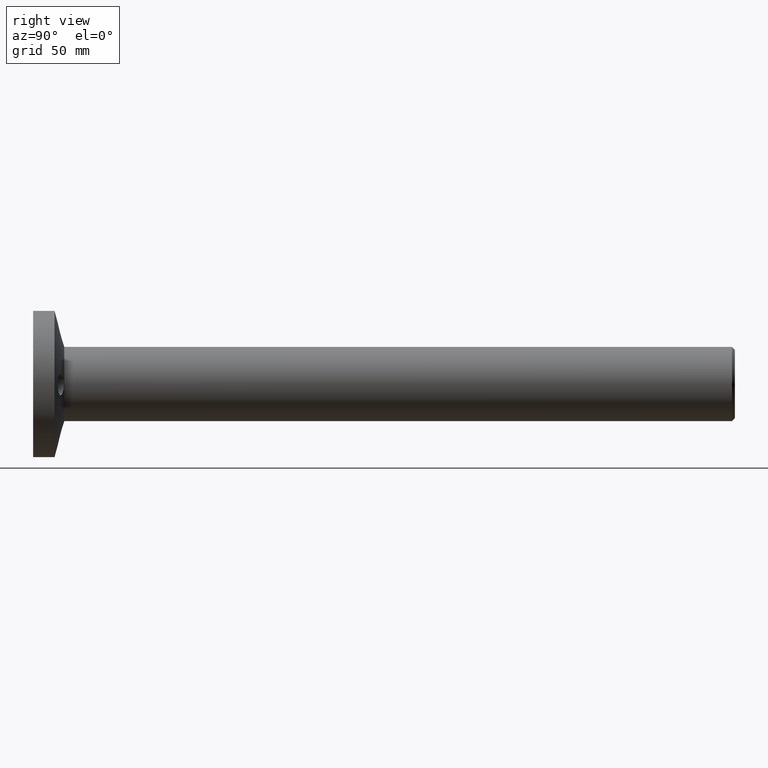
[diagram: clean part render]
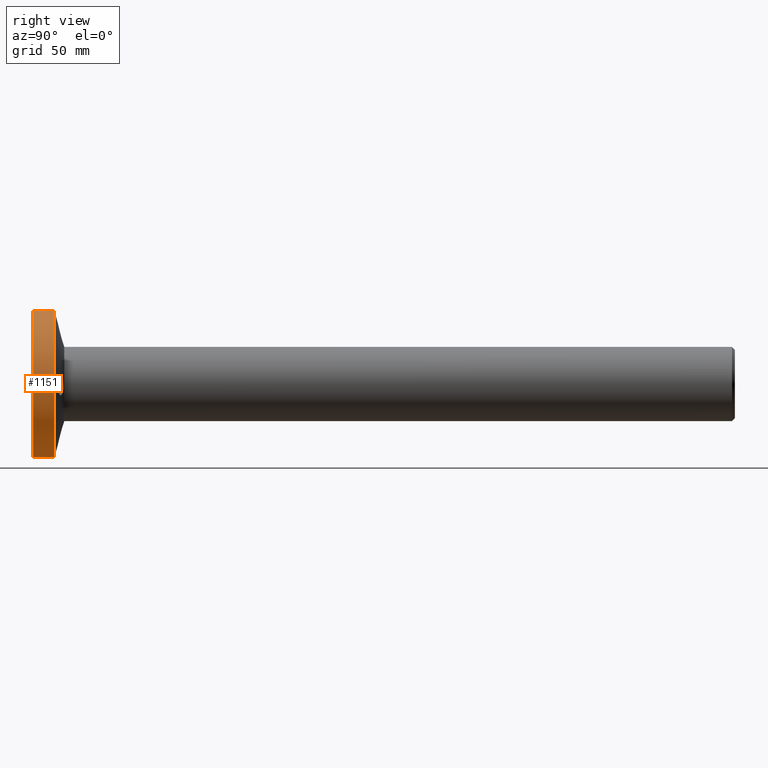
[diagram: same view with one face highlighted and labeled with its STEP entity id]
A machine part, right view. The second image highlights one B-rep face of the part: STEP entity #1151.
In plain terms, the highlighted cylindrical surface (partial cylindrical patch) has radius 37.5 mm, axis along (-0, -1, -0).
Its self-contained STEP definition (entity closure, byte-faithful):
#38 = DIRECTION ( 'NONE',  ( -0.0000000000000000000, -1.000000000000000000, -0.0000000000000000000 ) ) ;
#249 = DIRECTION ( 'NONE',  ( -0.0000000000000000000, -1.000000000000000000, -0.0000000000000000000 ) ) ;
#828 = ORIENTED_EDGE ( 'NONE', *, *, #14844, .F. ) ;
#1129 = CARTESIAN_POINT ( 'NONE',  ( 0.0000000000000000000, -3.070097820889742500, -37.50000000000000000 ) ) ;
#1151 = ADVANCED_FACE ( 'NONE', ( #6171 ), #1194, .T. ) ;
#1194 = CYLINDRICAL_SURFACE ( 'NONE', #10558, 37.50000000000000000 ) ;
#1320 = CARTESIAN_POINT ( 'NONE',  ( 0.0000000000000000000, -19.77435314003868400, -37.50000000000000000 ) ) ;
#1864 = EDGE_CURVE ( 'NONE', #7840, #18439, #15456, .T. ) ;
#1950 = CARTESIAN_POINT ( 'NONE',  ( 4.592425496802574400E-015, -3.070097820889742500, 37.50000000000000000 ) ) ;
#2272 = AXIS2_PLACEMENT_3D ( 'NONE', #12878, #17416, #12746 ) ;
#3236 = CARTESIAN_POINT ( 'NONE',  ( 4.592425496802575200E-015, 7.929902179110256600, 37.50000000000000700 ) ) ;
#4041 = LINE ( 'NONE', #5552, #13823 ) ;
#4192 = VECTOR ( 'NONE', #10582, 1000.000000000000000 ) ;
#4554 = DIRECTION ( 'NONE',  ( 0.0000000000000000000, 0.0000000000000000000, -1.000000000000000000 ) ) ;
#5552 = CARTESIAN_POINT ( 'NONE',  ( 4.592425496802574400E-015, -19.77435314003868400, 37.50000000000000000 ) ) ;
#6148 = VERTEX_POINT ( 'NONE', #1950 ) ;
#6171 = FACE_OUTER_BOUND ( 'NONE', #18245, .T. ) ;
#7736 = ORIENTED_EDGE ( 'NONE', *, *, #1864, .T. ) ;
#7754 = CARTESIAN_POINT ( 'NONE',  ( 0.0000000000000000000, 7.929902179110256600, -37.50000000000000700 ) ) ;
#7840 = VERTEX_POINT ( 'NONE', #7754 ) ;
#9361 = CARTESIAN_POINT ( 'NONE',  ( 0.0000000000000000000, -19.77435314003868400, 0.0000000000000000000 ) ) ;
#10558 = AXIS2_PLACEMENT_3D ( 'NONE', #9361, #249, #12257 ) ;
#10582 = DIRECTION ( 'NONE',  ( -0.0000000000000000000, -1.000000000000000000, -0.0000000000000000000 ) ) ;
#12257 = DIRECTION ( 'NONE',  ( 0.0000000000000000000, 0.0000000000000000000, -1.000000000000000000 ) ) ;
#12292 = ORIENTED_EDGE ( 'NONE', *, *, #18283, .F. ) ;
#12746 = DIRECTION ( 'NONE',  ( 0.0000000000000000000, 0.0000000000000000000, -1.000000000000000000 ) ) ;
#12878 = CARTESIAN_POINT ( 'NONE',  ( 0.0000000000000000000, 7.929902179110256600, 0.0000000000000000000 ) ) ;
#13294 = DIRECTION ( 'NONE',  ( -0.0000000000000000000, -1.000000000000000000, -0.0000000000000000000 ) ) ;
#13823 = VECTOR ( 'NONE', #13294, 1000.000000000000000 ) ;
#14844 = EDGE_CURVE ( 'NONE', #7840, #16492, #15402, .T. ) ;
#15003 = CIRCLE ( 'NONE', #16120, 37.50000000000000000 ) ;
#15402 = LINE ( 'NONE', #1320, #4192 ) ;
#15456 = CIRCLE ( 'NONE', #2272, 37.50000000000000000 ) ;
#16120 = AXIS2_PLACEMENT_3D ( 'NONE', #16693, #38, #4554 ) ;
#16492 = VERTEX_POINT ( 'NONE', #1129 ) ;
#16693 = CARTESIAN_POINT ( 'NONE',  ( 0.0000000000000000000, -3.070097820889742500, 0.0000000000000000000 ) ) ;
#16809 = ORIENTED_EDGE ( 'NONE', *, *, #18185, .T. ) ;
#17416 = DIRECTION ( 'NONE',  ( -0.0000000000000000000, -1.000000000000000000, -0.0000000000000000000 ) ) ;
#18185 = EDGE_CURVE ( 'NONE', #18439, #6148, #4041, .T. ) ;
#18245 = EDGE_LOOP ( 'NONE', ( #7736, #16809, #12292, #828 ) ) ;
#18283 = EDGE_CURVE ( 'NONE', #16492, #6148, #15003, .T. ) ;
#18439 = VERTEX_POINT ( 'NONE', #3236 ) ;